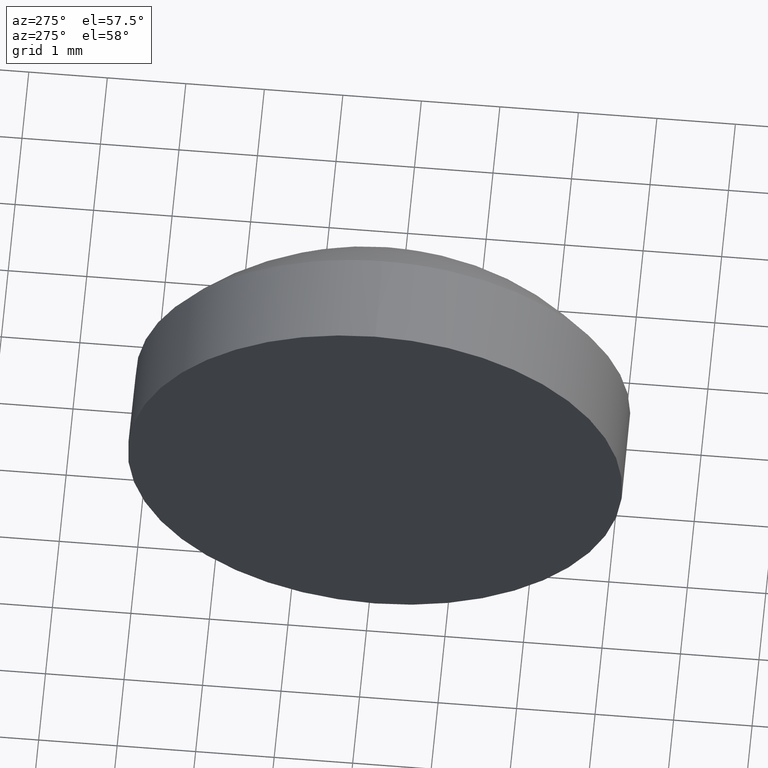
[diagram: clean part render]
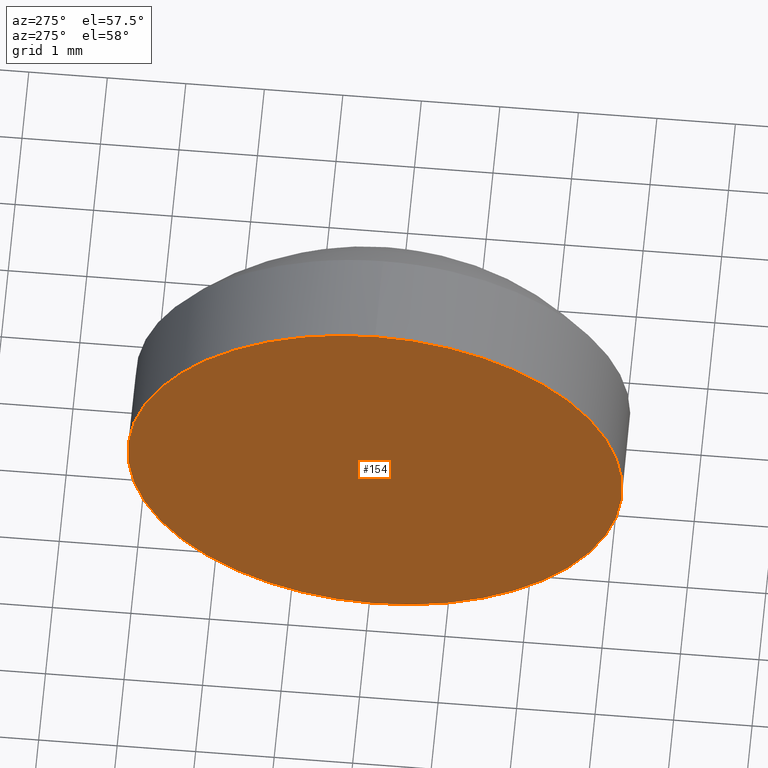
[diagram: same view with one face highlighted and labeled with its STEP entity id]
A machine part, auxiliary view. The second image highlights one B-rep face of the part: STEP entity #154.
In plain terms, the highlighted planar face has unit normal (1, 0, 0).
Its self-contained STEP definition (entity closure, byte-faithful):
#4 = DIRECTION ( 'NONE',  ( 0.0000000000000000000, 0.0000000000000000000, -1.000000000000000000 ) ) ;
#5 = DIRECTION ( 'NONE',  ( -1.000000000000000000, -0.0000000000000000000, -0.0000000000000000000 ) ) ;
#7 = CARTESIAN_POINT ( 'NONE',  ( 430.3296963031011700, 112.9186759989569300, -3.150000000000013700 ) ) ;
#16 = CARTESIAN_POINT ( 'NONE',  ( 430.3296963031011700, 112.9186759989569300, 0.0000000000000000000 ) ) ;
#19 = DIRECTION ( 'NONE',  ( 0.0000000000000000000, 0.0000000000000000000, 1.000000000000000000 ) ) ;
#20 = DIRECTION ( 'NONE',  ( 1.000000000000000000, 0.0000000000000000000, 0.0000000000000000000 ) ) ;
#29 = DIRECTION ( 'NONE',  ( -1.000000000000000000, -0.0000000000000000000, -0.0000000000000000000 ) ) ;
#34 = EDGE_LOOP ( 'NONE', ( #56, #106 ) ) ;
#56 = ORIENTED_EDGE ( 'NONE', *, *, #64, .T. ) ;
#58 = AXIS2_PLACEMENT_3D ( 'NONE', #176, #5, #19 ) ;
#59 = VERTEX_POINT ( 'NONE', #172 ) ;
#64 = EDGE_CURVE ( 'NONE', #59, #153, #107, .T. ) ;
#97 = CIRCLE ( 'NONE', #58, 3.150000000000013700 ) ;
#104 = CARTESIAN_POINT ( 'NONE',  ( 430.3296963031011700, 112.9186759989569300, 0.0000000000000000000 ) ) ;
#106 = ORIENTED_EDGE ( 'NONE', *, *, #123, .T. ) ;
#107 = CIRCLE ( 'NONE', #108, 3.150000000000013700 ) ;
#108 = AXIS2_PLACEMENT_3D ( 'NONE', #16, #29, #143 ) ;
#123 = EDGE_CURVE ( 'NONE', #153, #59, #97, .T. ) ;
#125 = AXIS2_PLACEMENT_3D ( 'NONE', #104, #20, #4 ) ;
#143 = DIRECTION ( 'NONE',  ( 0.0000000000000000000, 0.0000000000000000000, 1.000000000000000000 ) ) ;
#153 = VERTEX_POINT ( 'NONE', #7 ) ;
#154 = ADVANCED_FACE ( 'NONE', ( #177 ), #178, .F. ) ;
#172 = CARTESIAN_POINT ( 'NONE',  ( 430.3296963031011700, 112.9186759989569300, 3.150000000000013700 ) ) ;
#176 = CARTESIAN_POINT ( 'NONE',  ( 430.3296963031011700, 112.9186759989569300, 0.0000000000000000000 ) ) ;
#177 = FACE_OUTER_BOUND ( 'NONE', #34, .T. ) ;
#178 = PLANE ( 'NONE',  #125 ) ;